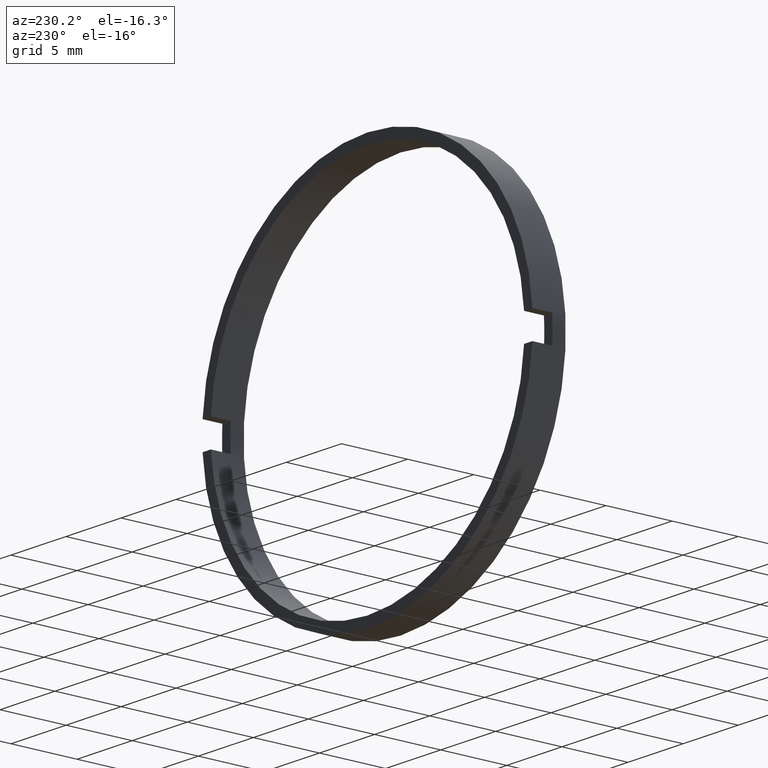
[diagram: clean part render]
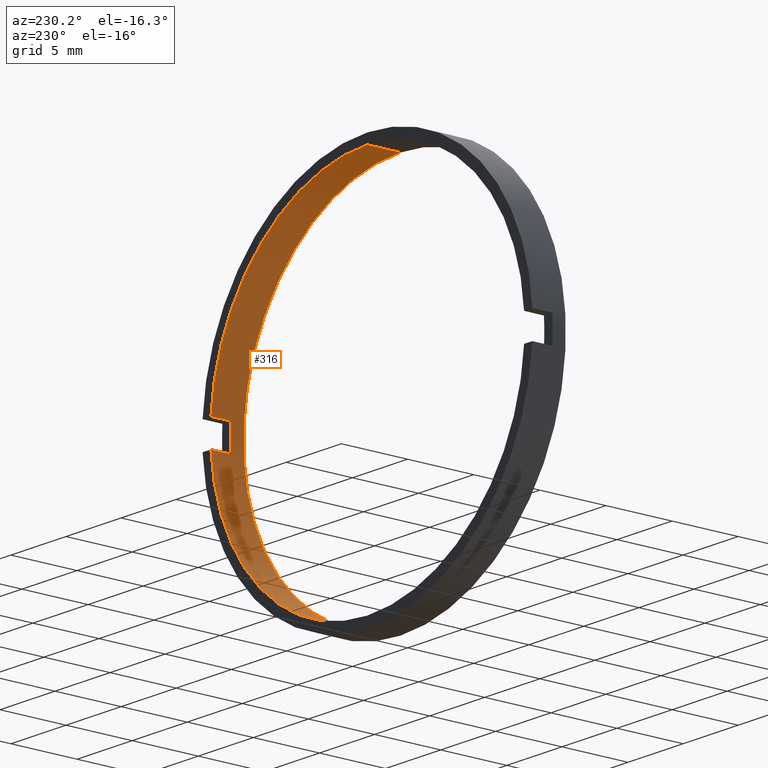
[diagram: same view with one face highlighted and labeled with its STEP entity id]
A machine part, auxiliary view. The second image highlights one B-rep face of the part: STEP entity #316.
In plain terms, the highlighted cylindrical surface (partial cylindrical patch) has radius 14.25 mm, axis along (-0, 1, -0).
Its self-contained STEP definition (entity closure, byte-faithful):
#3 = CARTESIAN_POINT ( 'NONE',  ( 0.0000000000000000000, -4.464249787179428900, 0.0000000000000000000 ) ) ;
#7 = CARTESIAN_POINT ( 'NONE',  ( 0.0000000000000000000, -1.964249787179434000, 0.0000000000000000000 ) ) ;
#9 = EDGE_CURVE ( 'NONE', #313, #32, #411, .T. ) ;
#12 = DIRECTION ( 'NONE',  ( 0.0000000000000000000, 0.0000000000000000000, 1.000000000000000000 ) ) ;
#14 = CARTESIAN_POINT ( 'NONE',  ( 14.21486897582950500, 56.26084262701361600, -1.000000000000000000 ) ) ;
#24 = CIRCLE ( 'NONE', #81, 14.25000000000000700 ) ;
#32 = VERTEX_POINT ( 'NONE', #247 ) ;
#33 = CARTESIAN_POINT ( 'NONE',  ( 0.0000000000000000000, 56.26084262701361600, 0.0000000000000000000 ) ) ;
#36 = CYLINDRICAL_SURFACE ( 'NONE', #263, 14.25000000000000700 ) ;
#50 = VERTEX_POINT ( 'NONE', #51 ) ;
#51 = CARTESIAN_POINT ( 'NONE',  ( 0.0000000000000000000, -1.964249787179434000, 14.25000000000000700 ) ) ;
#53 = EDGE_CURVE ( 'NONE', #194, #108, #302, .T. ) ;
#59 = CARTESIAN_POINT ( 'NONE',  ( 0.0000000000000000000, -3.464249787179428400, 0.0000000000000000000 ) ) ;
#63 = VERTEX_POINT ( 'NONE', #169 ) ;
#66 = CARTESIAN_POINT ( 'NONE',  ( 14.21486897582950300, -3.464249787179428400, -0.9999999999999995600 ) ) ;
#68 = CARTESIAN_POINT ( 'NONE',  ( 14.21486897582950300, -3.464249787179428400, 0.9999999999999995600 ) ) ;
#71 = ORIENTED_EDGE ( 'NONE', *, *, #9, .T. ) ;
#77 = EDGE_CURVE ( 'NONE', #50, #63, #24, .T. ) ;
#81 = AXIS2_PLACEMENT_3D ( 'NONE', #7, #347, #12 ) ;
#82 = LINE ( 'NONE', #166, #196 ) ;
#99 = DIRECTION ( 'NONE',  ( -0.0000000000000000000, 1.000000000000000000, -0.0000000000000000000 ) ) ;
#108 = VERTEX_POINT ( 'NONE', #276 ) ;
#111 = AXIS2_PLACEMENT_3D ( 'NONE', #185, #217, #222 ) ;
#131 = EDGE_CURVE ( 'NONE', #194, #50, #82, .T. ) ;
#148 = LINE ( 'NONE', #453, #333 ) ;
#162 = VERTEX_POINT ( 'NONE', #306 ) ;
#166 = CARTESIAN_POINT ( 'NONE',  ( 0.0000000000000000000, 56.26084262701361600, 14.25000000000000700 ) ) ;
#169 = CARTESIAN_POINT ( 'NONE',  ( 14.21486897582950300, -1.964249787179434000, 0.9999999999999995600 ) ) ;
#172 = DIRECTION ( 'NONE',  ( -0.0000000000000000000, 1.000000000000000000, -0.0000000000000000000 ) ) ;
#181 = DIRECTION ( 'NONE',  ( -0.0000000000000000000, -1.000000000000000000, -0.0000000000000000000 ) ) ;
#185 = CARTESIAN_POINT ( 'NONE',  ( 0.0000000000000000000, -1.964249787179434000, 0.0000000000000000000 ) ) ;
#188 = CARTESIAN_POINT ( 'NONE',  ( 0.0000000000000000000, -4.464249787179428900, 14.25000000000000700 ) ) ;
#194 = VERTEX_POINT ( 'NONE', #188 ) ;
#195 = DIRECTION ( 'NONE',  ( -0.0000000000000000000, 1.000000000000000000, -0.0000000000000000000 ) ) ;
#196 = VECTOR ( 'NONE', #396, 1000.000000000000000 ) ;
#217 = DIRECTION ( 'NONE',  ( -0.0000000000000000000, 1.000000000000000000, -0.0000000000000000000 ) ) ;
#220 = ORIENTED_EDGE ( 'NONE', *, *, #131, .T. ) ;
#222 = DIRECTION ( 'NONE',  ( 0.0000000000000000000, 0.0000000000000000000, 1.000000000000000000 ) ) ;
#227 = EDGE_CURVE ( 'NONE', #108, #162, #423, .T. ) ;
#229 = ORIENTED_EDGE ( 'NONE', *, *, #455, .F. ) ;
#234 = ORIENTED_EDGE ( 'NONE', *, *, #53, .F. ) ;
#240 = DIRECTION ( 'NONE',  ( -0.0000000000000000000, 1.000000000000000000, -0.0000000000000000000 ) ) ;
#247 = CARTESIAN_POINT ( 'NONE',  ( 14.21486897582950300, -1.964249787179434000, -0.9999999999999995600 ) ) ;
#263 = AXIS2_PLACEMENT_3D ( 'NONE', #33, #195, #376 ) ;
#265 = ORIENTED_EDGE ( 'NONE', *, *, #77, .T. ) ;
#276 = CARTESIAN_POINT ( 'NONE',  ( 1.745121688784979000E-015, -4.464249787179428900, -14.25000000000000700 ) ) ;
#279 = DIRECTION ( 'NONE',  ( 0.0000000000000000000, 0.0000000000000000000, 1.000000000000000000 ) ) ;
#282 = FACE_OUTER_BOUND ( 'NONE', #329, .T. ) ;
#294 = EDGE_CURVE ( 'NONE', #32, #162, #493, .T. ) ;
#302 = CIRCLE ( 'NONE', #405, 14.25000000000000700 ) ;
#306 = CARTESIAN_POINT ( 'NONE',  ( 1.745121688784979000E-015, -1.964249787179434000, -14.25000000000000700 ) ) ;
#312 = EDGE_CURVE ( 'NONE', #63, #338, #148, .T. ) ;
#313 = VERTEX_POINT ( 'NONE', #66 ) ;
#316 = ADVANCED_FACE ( 'NONE', ( #282 ), #36, .F. ) ;
#327 = ORIENTED_EDGE ( 'NONE', *, *, #312, .T. ) ;
#329 = EDGE_LOOP ( 'NONE', ( #422, #234, #220, #265, #327, #229, #71, #420 ) ) ;
#333 = VECTOR ( 'NONE', #412, 1000.000000000000000 ) ;
#338 = VERTEX_POINT ( 'NONE', #68 ) ;
#340 = VECTOR ( 'NONE', #172, 1000.000000000000000 ) ;
#347 = DIRECTION ( 'NONE',  ( -0.0000000000000000000, 1.000000000000000000, -0.0000000000000000000 ) ) ;
#375 = CARTESIAN_POINT ( 'NONE',  ( 1.745121688784979000E-015, 56.26084262701361600, -14.25000000000000700 ) ) ;
#376 = DIRECTION ( 'NONE',  ( 0.0000000000000000000, 0.0000000000000000000, 1.000000000000000000 ) ) ;
#396 = DIRECTION ( 'NONE',  ( -0.0000000000000000000, 1.000000000000000000, -0.0000000000000000000 ) ) ;
#405 = AXIS2_PLACEMENT_3D ( 'NONE', #3, #240, #279 ) ;
#406 = VECTOR ( 'NONE', #99, 1000.000000000000000 ) ;
#407 = AXIS2_PLACEMENT_3D ( 'NONE', #59, #181, #446 ) ;
#411 = LINE ( 'NONE', #14, #340 ) ;
#412 = DIRECTION ( 'NONE',  ( 0.0000000000000000000, -1.000000000000000000, 0.0000000000000000000 ) ) ;
#420 = ORIENTED_EDGE ( 'NONE', *, *, #294, .T. ) ;
#422 = ORIENTED_EDGE ( 'NONE', *, *, #227, .F. ) ;
#423 = LINE ( 'NONE', #375, #406 ) ;
#446 = DIRECTION ( 'NONE',  ( -7.993605777301127100E-015, 0.0000000000000000000, 1.000000000000000000 ) ) ;
#453 = CARTESIAN_POINT ( 'NONE',  ( 14.21486897582950500, 56.26084262701361600, 1.000000000000000000 ) ) ;
#455 = EDGE_CURVE ( 'NONE', #313, #338, #503, .T. ) ;
#493 = CIRCLE ( 'NONE', #111, 14.25000000000000700 ) ;
#503 = CIRCLE ( 'NONE', #407, 14.25000000000000700 ) ;